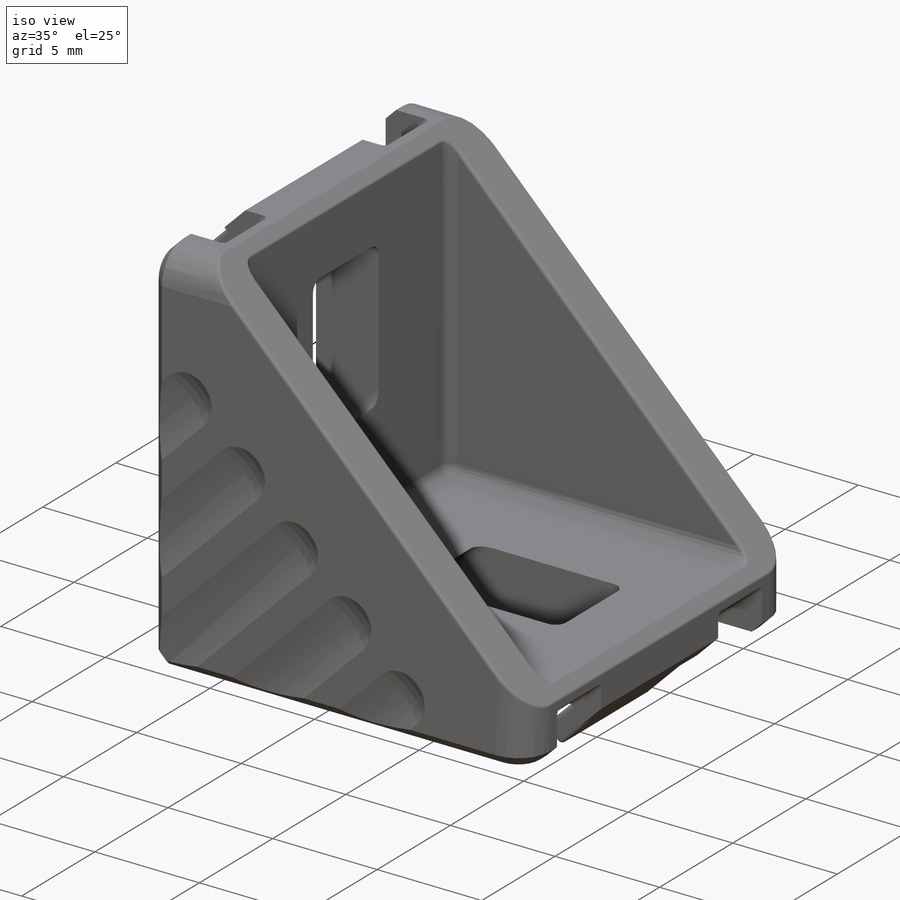
[diagram: iso view]
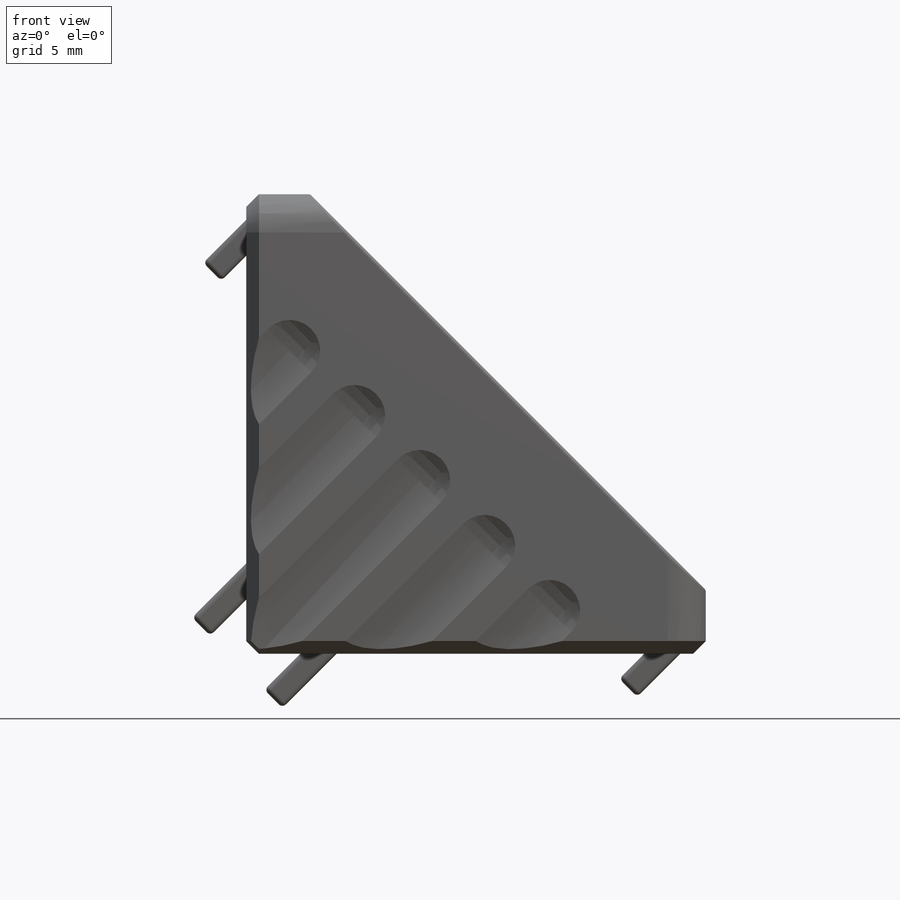
[diagram: front view]
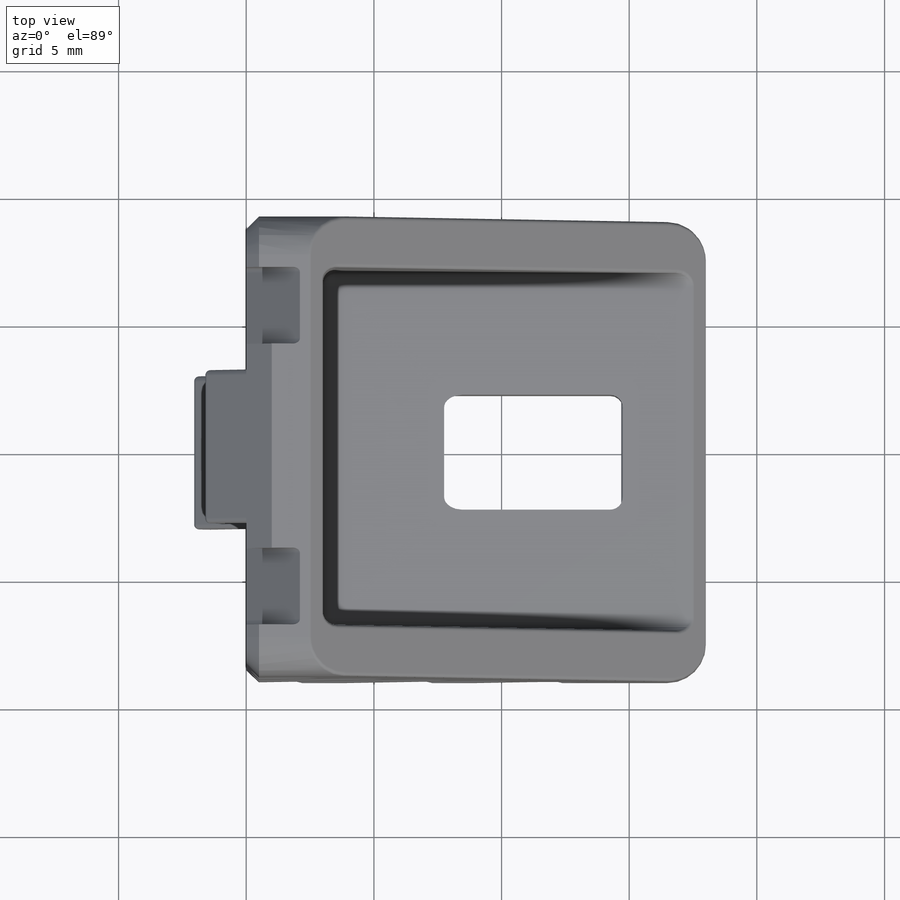
[diagram: top view]
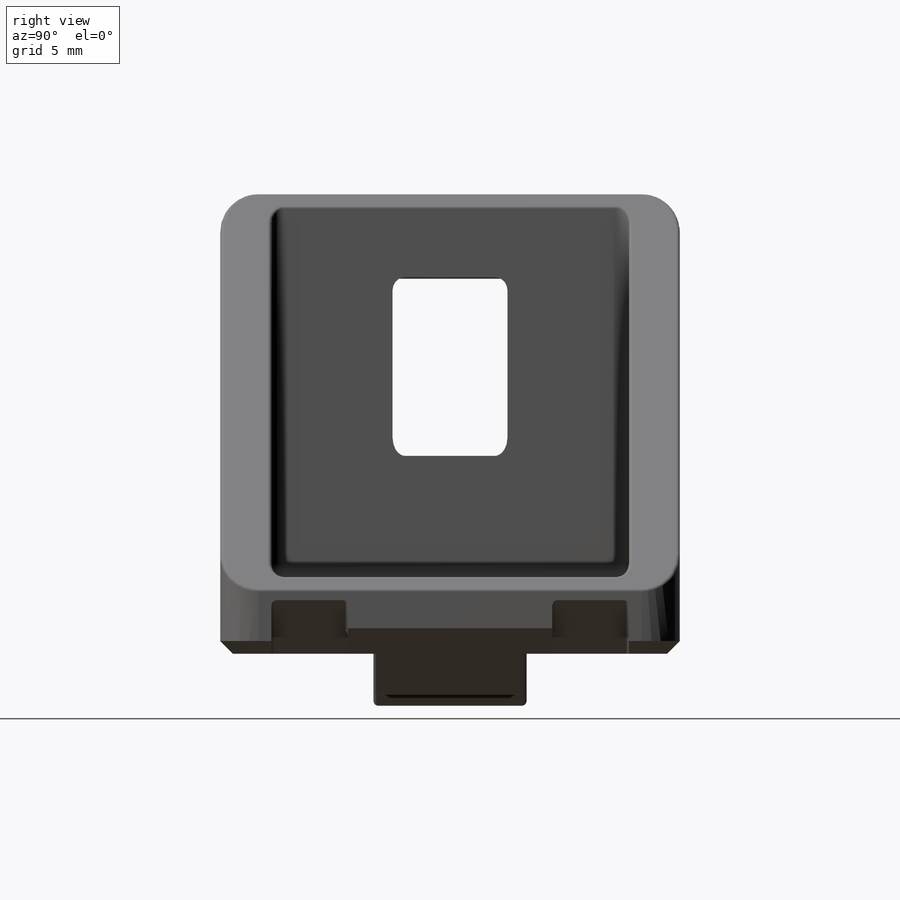
[diagram: right view]
SOLIDWORKS PART (.sldprt)
format: sldprt  version: not decoded by parser v0  size: 942,592 bytes
history: native  units: mm
features: sketch x17, cut_extrude x12, fillet x7, plane x3, mirror x3, extrude x2, chamfer x2, material x1, cut_revolve x1, pattern_linear x1 + 1 further entry (+16 scaffold rows collapsed)
feature tree (66):
  scaffold x16  (default folders/planes/origin — collapsed)
  material  "Material <not specified>"
  "Design Table"
  sketch  "Sketch1"  dims[c1.D1=3.0mm c1.D2=3.0mm c1.D3=18.0mm c1.D4=18.0mm c2.D1=18.0mm c2.D2=18.0mm c2.D3=3.0mm c2.D4=3.0mm c3.D1=18.0mm c3.D2=18.0mm c3.D3=3.0mm c3.D4=3.0mm]
  extrude  "Extrude1"  Depth=18mm
  plane  "Plane1"  Offset=3.5mm
  chamfer  "Chamfer1"  Distance=0.5mm Angle=45deg
  sketch  "Sketch2"  dims[D1=2.0mm]
  sketch  "Sketch3"  dims[D1=2.0mm]
  sketch  "Sketch4"  dims[c1.D4=0.5mm c1.D1=7.75mm c1.D2=14.75mm c1.D3=4.5mm c2.D1=7.75mm]
  sketch  "Sketch6"  dims[c1.D1=7.75mm c1.D2=14.75mm c1.D3=4.5mm c2.D1=7.75mm]
  cut_extrude  "Cut-Extrude15"  [1 undecoded]
  fillet  "Fillet3"  Radius=1.5mm
  cut_extrude  "Cut-Extrude14"  [1 undecoded]
  sketch  "Sketch33"  dims[c1.D1=~4.504079mm c2.D1=44.5deg c2.D2=~4.099562mm c3.D2=44.5deg]
  cut_extrude  "Cut-Extrude20"  Depth=4.5mm
  chamfer  "Chamfer2"  Distance=0.5mm Angle=45deg
  sketch  "Sketch9"  dims[c1.D1=3.0mm c1.D2=16.0mm c2.D2=~44.999944deg c2.D3=~3.905125mm c3.D3=~39.805571deg c3.D1=2.1mm c4.D3=~3.661967mm c5.D3=50.0deg c6.D3=2.1mm c7.D3=50.0deg c7.D4=~3.26702mm c8.D4=~10.000112deg c9.D4=~2.502687mm c9.D2=2.1mm c10.D2=50.0deg c10.D4=2.1mm c10.D5=~3.26702mm c11.D5=10.0deg c12.D5=22.5mm c12.D4=2.1mm c12.D6=~2.502683mm c13.D5=~3.26702mm c14.D5=10.0deg c15.D5=~22.485996mm]
  cut_extrude  "Cut-Extrude2"  Depth=3mm
  mirror  "Mirror2"
  sketch  "Sketch13"  dims[c1.D1=1.0mm c1.D2=2.8mm c1.D3=~2.527742mm c2.D3=~1.557989deg c3.D3=1.0mm c3.D4=2.8mm c4.D4=45.0deg c4.D1=1.0mm c4.D5=1.0mm c4.D6=~0.792893mm c5.D1=1.0mm c5.D6=~1.707107mm c5.D5=1.5mm c6.D6=16.0mm c7.D6=45.0deg c7.D7=3.0mm c7.D8=1.0mm c7.D9=16.0mm c8.D9=45.0deg c8.D10=3.5mm c8.D11=1.0mm c8.D12=1.0mm c8.D13=1.0mm c9.D11=~3.479899mm c9.D4=3.41mm c10.D11=~0.657605mm c10.D4=2.0mm c11.D4=45.0deg c11.D11=1.0mm c12.D11=270.0deg c13.D11=1.0mm c13.D12=~1.979899mm c14.D12=~0.841725deg c15.D12=1.0mm c15.D5=1.0mm c15.D9=1.0mm c15.D10=1.0mm c15.D13=3.0mm c15.D14=1.0mm c15.D15=~2.146447mm]
  extrude  "Extrude2"  Depth=6mm
  sketch  "Sketch14"  dims[c1.D1=~1.67868mm c2.D1=~3.814075deg c3.D1=1.0mm c3.D2=1.0mm c3.D3=1.0mm c4.D2=2.8mm c4.D3=~4.851067mm c4.D4=~0.707107mm c5.D3=1.0mm c5.D4=~4.092893mm c6.D3=4.5mm c6.D4=1.0mm c7.D3=1.0mm c7.D5=16.0mm c8.D5=45.0deg c8.D6=1.0mm c8.D7=1.0mm c8.D8=3.0mm c9.D7=3.0mm c9.D8=3.0mm c10.D8=~0.48804deg c11.D8=~0.974874mm c11.D7=1.0mm c12.D8=16.0mm c13.D8=45.0deg c14.D8=1.0mm c14.D9=3.0mm c14.D10=4.8mm c14.D11=1.0mm c14.D3=4.8mm c14.D4=1.0mm c15.D10=~1.979899mm c16.D10=~0.163105deg c17.D10=~1.979899mm c18.D10=~0.163105deg c18.D3=1.0mm c18.D4=4.0mm c19.D10=4.0mm]
  cut_extrude  "Cut-Extrude5"  Depth=8mm
  sketch  "Sketch16"  dims[c1.D1=16.0mm c2.D1=45.0deg]
  cut_extrude  "Cut-Extrude7"  Depth=1mm
  mirror  "Mirror3"
  fillet  "Fillet7"  Radius=0.5mm
  fillet  "Fillet8"  Radius=0.15mm
  plane  "Plane2"
  sketch  "Sketch21"  dims[c1.D1=~1.626197mm c2.D1=45.0deg c2.D2=1.0mm c2.D3=1.0mm c3.D1=16.0mm c4.D1=45.0deg c4.D2=1.0mm c4.D3=~1.414214mm c5.D3=45.0deg c6.D3=1.0mm c7.D3=45.0deg c7.D4=1.0mm]
  cut_extrude  "Cut-Extrude9"  Depth=8mm
  sketch  "Sketch24"  dims[c1.D1=1.0mm c1.D2=0.32mm c2.D1=1.0mm]
  cut_extrude  "Cut-Extrude11"  [1 undecoded]
  sketch  "Sketch28"  dims[c1.D1=~0.631576mm c2.D1=90.0deg c3.D1=~1.618943mm c4.D1=90.0deg]
  cut_extrude  "Cut-Extrude16"  [1 undecoded]
  sketch  "Sketch29"  dims[c1.D1=~0.739927mm c2.D1=90.0deg c3.D1=~0.858658mm c4.D1=90.0deg]
  cut_extrude  "Cut-Extrude17"  [1 undecoded]
  sketch  "Sketch30"  dims[c1.D1=~0.411323mm c2.D1=90.0deg]
  cut_extrude  "Cut-Extrude18"  [1 undecoded]
  sketch  "Sketch31"
  cut_extrude  "Cut-Extrude19"  [1 undecoded]
  plane  "Plane3"  Offset=2.08mm
  sketch  "Sketch27"  dims[c1.D2=2.4mm c1.D1=16.0mm c2.D1=45.0deg c2.D2=~6.601163mm c2.D3=12.0mm c2.D4=10.8mm c2.D5=9.6mm]
  cut_revolve  "Cut-Revolve4"  Angle=360deg
  pattern_linear  "LPattern1"  Count1=3 Count2=3 Spacing1=3.6mm Spacing2=3.6mm
  mirror  "Mirror7"
  fillet  "Fillet17"  Radius=0.2mm
  fillet  "Fillet9"  Radius=0.2mm
  fillet  "Fillet14"  Radius=0.2mm
  fillet  "Fillet18"  Radius=0.5mm
decode coverage: 34 of 45 modeling features carry decoded parameters; 1 rows unclassified (native names shown)
note: ~ marks probable driven/reference dimensions
note: 7 parameter values undecoded
summary: no parameter record found for 7 features
note: suppression state not decoded; provenance and decode notes live in map.json
